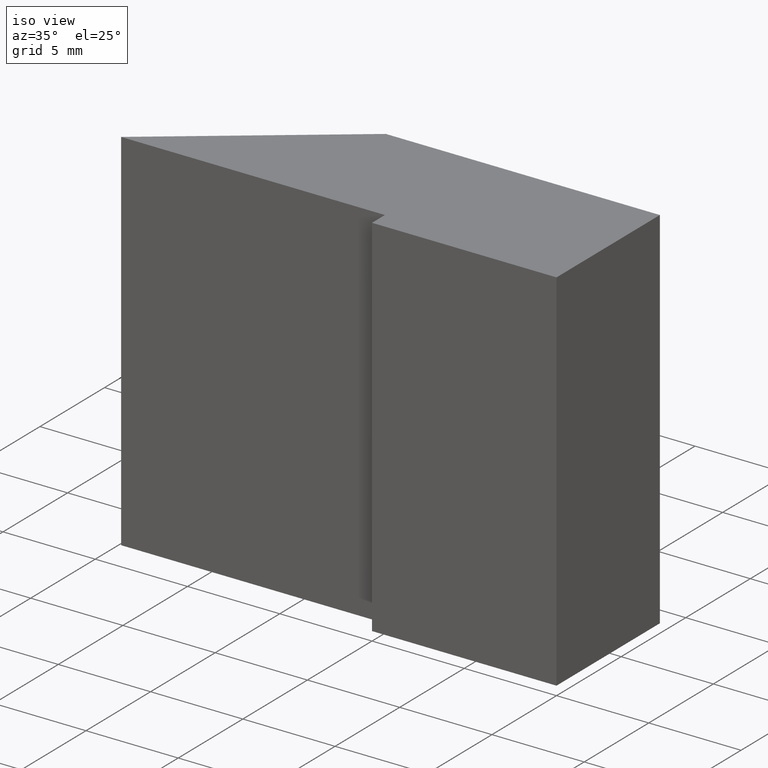
[diagram: clean part render]
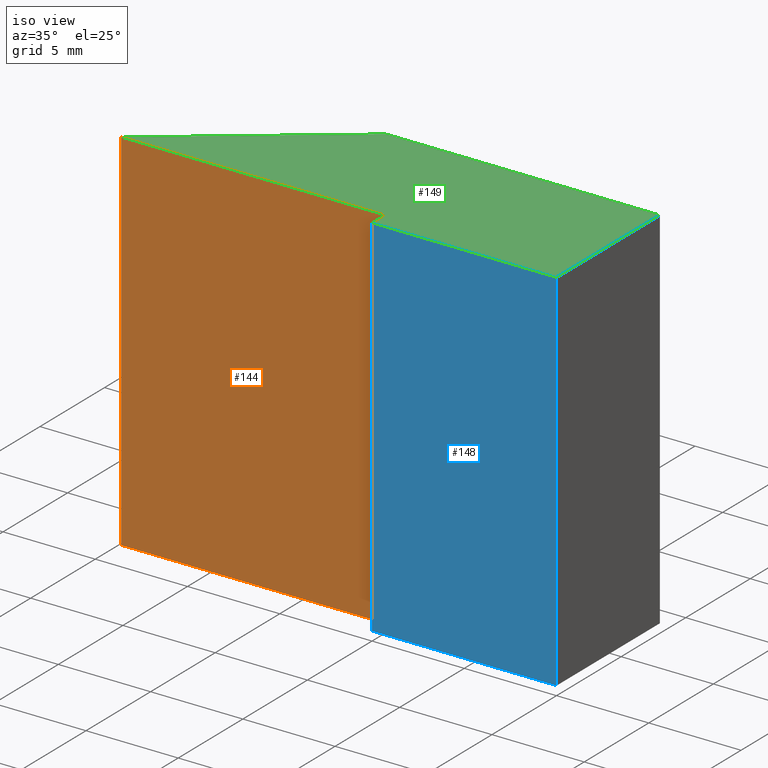
[diagram: same view with three faces highlighted in distinct colors, each labeled with its STEP entity id]
A machine part, iso view with three faces highlighted in distinct colors.
Their STEP definitions:

[orange] entity #144 — the highlighted planar face has unit normal (0, -1, 0).
#18=FACE_OUTER_BOUND('',#26,.T.);
#26=EDGE_LOOP('',(#108,#109,#110,#111));
#35=LINE('',#227,#53);
#39=LINE('',#235,#57);
#41=LINE('',#239,#59);
#42=LINE('',#240,#60);
#53=VECTOR('',#188,10.);
#57=VECTOR('',#194,10.);
#59=VECTOR('',#198,10.);
#60=VECTOR('',#199,10.);
#71=VERTEX_POINT('',#224);
#72=VERTEX_POINT('',#226);
#75=VERTEX_POINT('',#233);
#76=VERTEX_POINT('',#238);
#83=EDGE_CURVE('',#72,#71,#35,.T.);
#87=EDGE_CURVE('',#75,#71,#39,.T.);
#89=EDGE_CURVE('',#75,#76,#41,.T.);
#90=EDGE_CURVE('',#76,#72,#42,.T.);
#108=ORIENTED_EDGE('',*,*,#89,.T.);
#109=ORIENTED_EDGE('',*,*,#90,.T.);
#110=ORIENTED_EDGE('',*,*,#83,.T.);
#111=ORIENTED_EDGE('',*,*,#87,.F.);
#136=PLANE('',#175);
#144=ADVANCED_FACE('',(#18),#136,.T.);
#175=AXIS2_PLACEMENT_3D('',#237,#196,#197);
#188=DIRECTION('',(1.,1.94094934375027E-17,0.));
#194=DIRECTION('',(0.,0.,-1.));
#196=DIRECTION('center_axis',(1.94094934375027E-17,-1.,0.));
#197=DIRECTION('ref_axis',(0.,0.,-1.));
#198=DIRECTION('',(-1.,-1.94094934375027E-17,0.));
#199=DIRECTION('',(0.,0.,-1.));
#224=CARTESIAN_POINT('',(-10.,1.,-10.));
#226=CARTESIAN_POINT('',(-24.3,1.,-10.));
#227=CARTESIAN_POINT('',(-10.,1.,-10.));
#233=CARTESIAN_POINT('',(-10.,1.,10.));
#235=CARTESIAN_POINT('',(-10.,1.,0.));
#237=CARTESIAN_POINT('Origin',(-10.,1.,0.));
#238=CARTESIAN_POINT('',(-24.3,1.,10.));
#239=CARTESIAN_POINT('',(-10.,1.,10.));
#240=CARTESIAN_POINT('',(-24.3,1.,0.));

[blue] entity #148 — the highlighted planar face has unit normal (0, -1, 0).
#22=FACE_OUTER_BOUND('',#30,.T.);
#30=EDGE_LOOP('',(#124,#125,#126,#127));
#33=LINE('',#223,#51);
#40=LINE('',#236,#58);
#48=LINE('',#252,#66);
#49=LINE('',#254,#67);
#51=VECTOR('',#186,10.);
#58=VECTOR('',#195,10.);
#66=VECTOR('',#211,10.);
#67=VECTOR('',#214,10.);
#68=VERTEX_POINT('',#219);
#70=VERTEX_POINT('',#222);
#74=VERTEX_POINT('',#232);
#79=VERTEX_POINT('',#250);
#81=EDGE_CURVE('',#70,#68,#33,.T.);
#88=EDGE_CURVE('',#74,#70,#40,.T.);
#96=EDGE_CURVE('',#68,#79,#48,.T.);
#97=EDGE_CURVE('',#79,#74,#49,.T.);
#124=ORIENTED_EDGE('',*,*,#97,.T.);
#125=ORIENTED_EDGE('',*,*,#88,.T.);
#126=ORIENTED_EDGE('',*,*,#81,.T.);
#127=ORIENTED_EDGE('',*,*,#96,.T.);
#140=PLANE('',#179);
#148=ADVANCED_FACE('',(#22),#140,.T.);
#179=AXIS2_PLACEMENT_3D('',#253,#212,#213);
#186=DIRECTION('',(1.,1.11022302462516E-16,0.));
#195=DIRECTION('',(0.,0.,-1.));
#211=DIRECTION('',(0.,0.,1.));
#212=DIRECTION('center_axis',(1.11022302462516E-16,-1.,0.));
#213=DIRECTION('ref_axis',(0.,0.,-1.));
#214=DIRECTION('',(-1.,-1.11022302462516E-16,0.));
#219=CARTESIAN_POINT('',(1.66533453693773E-15,1.11022302462516E-15,-10.));
#222=CARTESIAN_POINT('',(-10.,0.,-10.));
#223=CARTESIAN_POINT('',(1.66533453693773E-15,1.11022302462516E-15,-10.));
#232=CARTESIAN_POINT('',(-10.,0.,10.));
#236=CARTESIAN_POINT('',(-10.,0.,0.));
#250=CARTESIAN_POINT('',(1.66533453693773E-15,1.11022302462516E-15,10.));
#252=CARTESIAN_POINT('',(1.66533453693773E-15,1.11022302462516E-15,0.));
#253=CARTESIAN_POINT('Origin',(1.66533453693773E-15,1.11022302462516E-15,
0.));
#254=CARTESIAN_POINT('',(1.66533453693773E-15,1.11022302462516E-15,10.));

[green] entity #149 — the highlighted planar face has unit normal (0, 0, 1).
#23=FACE_OUTER_BOUND('',#31,.T.);
#31=EDGE_LOOP('',(#128,#129,#130,#131,#132,#133));
#38=LINE('',#234,#56);
#41=LINE('',#239,#59);
#43=LINE('',#243,#61);
#45=LINE('',#247,#63);
#47=LINE('',#251,#65);
#49=LINE('',#254,#67);
#56=VECTOR('',#193,10.);
#59=VECTOR('',#198,10.);
#61=VECTOR('',#202,10.);
#63=VECTOR('',#206,10.);
#65=VECTOR('',#210,10.);
#67=VECTOR('',#214,10.);
#74=VERTEX_POINT('',#232);
#75=VERTEX_POINT('',#233);
#76=VERTEX_POINT('',#238);
#77=VERTEX_POINT('',#242);
#78=VERTEX_POINT('',#246);
#79=VERTEX_POINT('',#250);
#86=EDGE_CURVE('',#74,#75,#38,.T.);
#89=EDGE_CURVE('',#75,#76,#41,.T.);
#91=EDGE_CURVE('',#76,#77,#43,.T.);
#93=EDGE_CURVE('',#77,#78,#45,.T.);
#95=EDGE_CURVE('',#78,#79,#47,.T.);
#97=EDGE_CURVE('',#79,#74,#49,.T.);
#128=ORIENTED_EDGE('',*,*,#86,.F.);
#129=ORIENTED_EDGE('',*,*,#97,.F.);
#130=ORIENTED_EDGE('',*,*,#95,.F.);
#131=ORIENTED_EDGE('',*,*,#93,.F.);
#132=ORIENTED_EDGE('',*,*,#91,.F.);
#133=ORIENTED_EDGE('',*,*,#89,.F.);
#141=PLANE('',#180);
#149=ADVANCED_FACE('',(#23),#141,.T.);
#180=AXIS2_PLACEMENT_3D('',#255,#215,#216);
#193=DIRECTION('',(0.,1.,0.));
#198=DIRECTION('',(-1.,-1.94094934375027E-17,0.));
#202=DIRECTION('',(0.803557193344746,0.595227550625738,0.));
#206=DIRECTION('',(1.,1.49524986481503E-16,0.));
#210=DIRECTION('',(3.46944695195361E-16,-1.,0.));
#214=DIRECTION('',(-1.,-1.11022302462516E-16,0.));
#215=DIRECTION('center_axis',(0.,0.,1.));
#216=DIRECTION('ref_axis',(1.,0.,0.));
#232=CARTESIAN_POINT('',(-10.,0.,10.));
#233=CARTESIAN_POINT('',(-10.,1.,10.));
#234=CARTESIAN_POINT('',(-10.,0.,10.));
#238=CARTESIAN_POINT('',(-24.3,1.,10.));
#239=CARTESIAN_POINT('',(-10.,1.,10.));
#242=CARTESIAN_POINT('',(-14.85,8.,10.));
#243=CARTESIAN_POINT('',(-24.3,1.,10.));
#246=CARTESIAN_POINT('',(-1.11022302462516E-15,8.,10.));
#247=CARTESIAN_POINT('',(-14.85,8.,10.));
#250=CARTESIAN_POINT('',(1.66533453693773E-15,1.11022302462516E-15,10.));
#251=CARTESIAN_POINT('',(-1.11022302462516E-15,8.,10.));
#254=CARTESIAN_POINT('',(1.66533453693773E-15,1.11022302462516E-15,10.));
#255=CARTESIAN_POINT('Origin',(-10.7780017141002,3.64747417138999,10.));